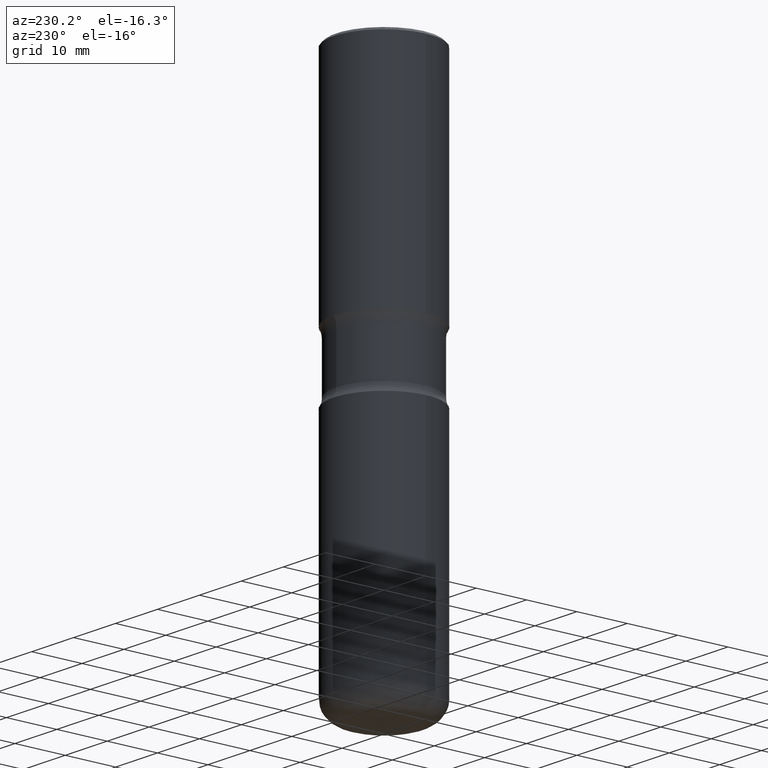
[diagram: clean part render]
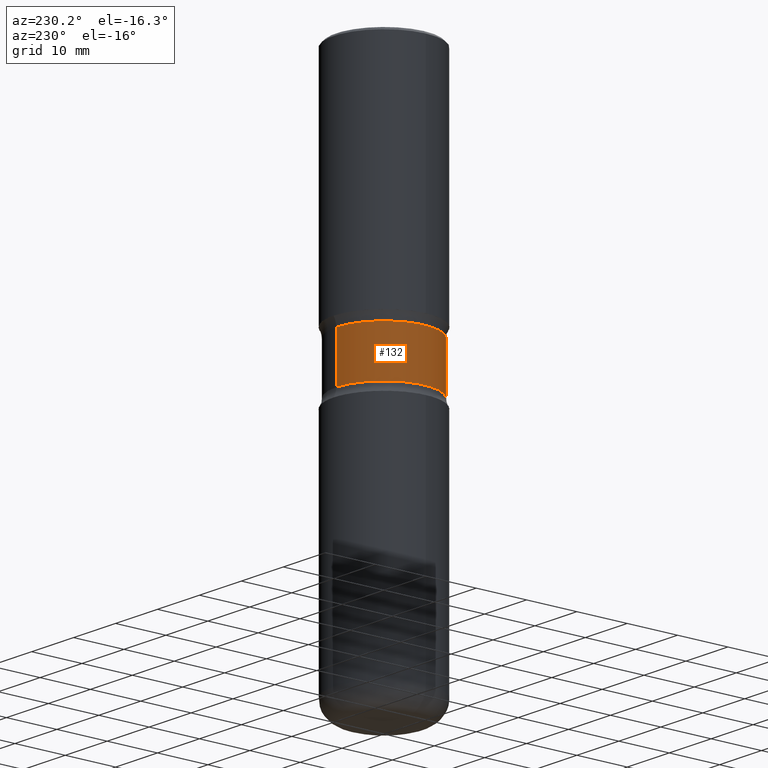
[diagram: same view with one face highlighted and labeled with its STEP entity id]
A machine part, auxiliary view. The second image highlights one B-rep face of the part: STEP entity #132.
In plain terms, the highlighted cylindrical surface (partial cylindrical patch) has radius 9.4869 mm, axis along (0, -0, -1).
Its self-contained STEP definition (entity closure, byte-faithful):
#2 = DIRECTION ( 'NONE',  ( 2.419116809720808422E-29, -3.529218897642557802E-15, -1.000000000000000000 ) ) ;
#15 = LINE ( 'NONE', #68, #155 ) ;
#25 = VERTEX_POINT ( 'NONE', #414 ) ;
#28 = DIRECTION ( 'NONE',  ( 6.982962677686264344E-15, 1.000000000000000000, -3.657092360996336845E-15 ) ) ;
#29 = EDGE_CURVE ( 'NONE', #488, #277, #87, .T. ) ;
#38 = DIRECTION ( 'NONE',  ( 6.982962677686264344E-15, 1.000000000000000000, -2.925673888797069318E-15 ) ) ;
#61 = VERTEX_POINT ( 'NONE', #317 ) ;
#68 = CARTESIAN_POINT ( 'NONE',  ( -2.562396002167562492E-15, -0.3735000000000148201, -4.251999999999999780 ) ) ;
#71 = DIRECTION ( 'NONE',  ( 2.419116809720808142E-29, -3.529218897642557802E-15, -1.000000000000000000 ) ) ;
#87 = CIRCLE ( 'NONE', #492, 0.3734999999999999432 ) ;
#109 = VECTOR ( 'NONE', #2, 39.37007874015748143 ) ;
#132 = ADVANCED_FACE ( 'NONE', ( #166 ), #300, .T. ) ;
#155 = VECTOR ( 'NONE', #189, 39.37007874015748143 ) ;
#157 = EDGE_LOOP ( 'NONE', ( #525, #350, #306, #509 ) ) ;
#158 = EDGE_CURVE ( 'NONE', #25, #61, #491, .T. ) ;
#166 = FACE_OUTER_BOUND ( 'NONE', #157, .T. ) ;
#189 = DIRECTION ( 'NONE',  ( 2.419116809720808422E-29, -3.529218897642557802E-15, -1.000000000000000000 ) ) ;
#230 = AXIS2_PLACEMENT_3D ( 'NONE', #557, #471, #507 ) ;
#239 = AXIS2_PLACEMENT_3D ( 'NONE', #431, #253, #38 ) ;
#253 = DIRECTION ( 'NONE',  ( 2.419116809720808142E-29, -3.529218897642557802E-15, -1.000000000000000000 ) ) ;
#263 = LINE ( 'NONE', #401, #109 ) ;
#272 = CARTESIAN_POINT ( 'NONE',  ( 2.608136560115873849E-15, 0.3734999999999922271, -2.215368069159903364 ) ) ;
#276 = CARTESIAN_POINT ( 'NONE',  ( -2.631687031945105097E-15, -0.3735000000000076592, -2.215368069159900699 ) ) ;
#277 = VERTEX_POINT ( 'NONE', #272 ) ;
#300 = CYLINDRICAL_SURFACE ( 'NONE', #239, 0.3734999999999999432 ) ;
#306 = ORIENTED_EDGE ( 'NONE', *, *, #362, .T. ) ;
#317 = CARTESIAN_POINT ( 'NONE',  ( 2.608136560115864777E-15, 0.3734999999999935039, -1.839831930840101437 ) ) ;
#350 = ORIENTED_EDGE ( 'NONE', *, *, #158, .T. ) ;
#362 = EDGE_CURVE ( 'NONE', #61, #277, #263, .T. ) ;
#401 = CARTESIAN_POINT ( 'NONE',  ( 2.608136560115922758E-15, 0.3734999999999850107, -4.252000000000002444 ) ) ;
#414 = CARTESIAN_POINT ( 'NONE',  ( -2.631687031945116141E-15, -0.3735000000000063269, -1.839831930840098773 ) ) ;
#431 = CARTESIAN_POINT ( 'NONE',  ( 1.034625945885917320E-28, -1.492006503725770057E-14, -4.252000000000000668 ) ) ;
#454 = CARTESIAN_POINT ( 'NONE',  ( 5.419408919749742446E-29, -7.732345139394574102E-15, -2.215368069159902031 ) ) ;
#471 = DIRECTION ( 'NONE',  ( 2.419116809720808142E-29, -3.529218897642557802E-15, -1.000000000000000000 ) ) ;
#488 = VERTEX_POINT ( 'NONE', #276 ) ;
#491 = CIRCLE ( 'NONE', #230, 0.3734999999999999432 ) ;
#492 = AXIS2_PLACEMENT_3D ( 'NONE', #454, #71, #28 ) ;
#507 = DIRECTION ( 'NONE',  ( 6.982962677686264344E-15, 1.000000000000000000, -3.657092360996336845E-15 ) ) ;
#509 = ORIENTED_EDGE ( 'NONE', *, *, #29, .F. ) ;
#525 = ORIENTED_EDGE ( 'NONE', *, *, #552, .F. ) ;
#552 = EDGE_CURVE ( 'NONE', #25, #488, #15, .T. ) ;
#557 = CARTESIAN_POINT ( 'NONE',  ( 4.510943134882670892E-29, -6.406995903288618457E-15, -1.839831930840100105 ) ) ;